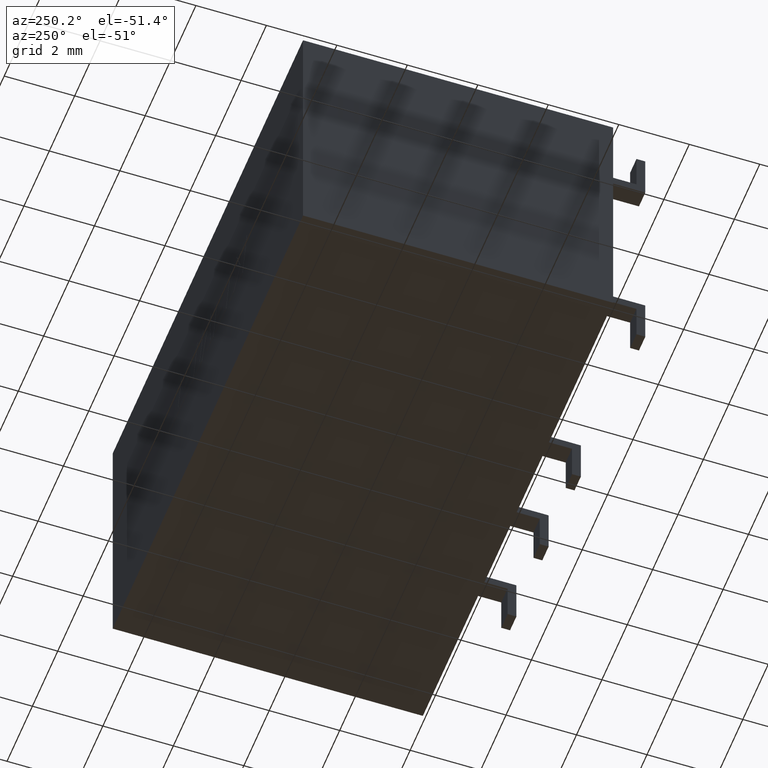
[diagram: clean part render]
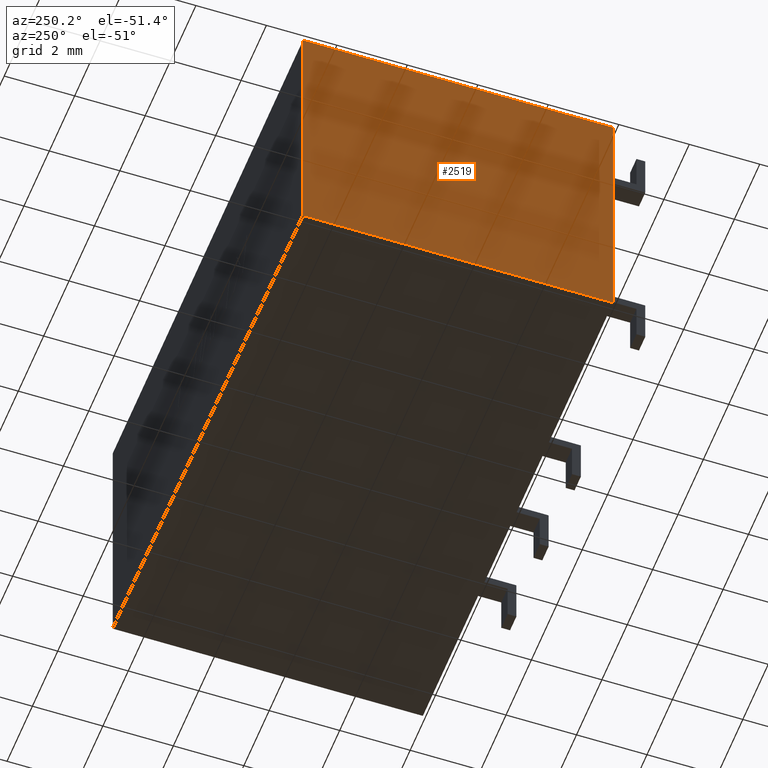
[diagram: same view with one face highlighted and labeled with its STEP entity id]
A machine part, auxiliary view. The second image highlights one B-rep face of the part: STEP entity #2519.
In plain terms, the highlighted planar face has unit normal (1, -0, 0).
Its self-contained STEP definition (entity closure, byte-faithful):
#149 = VECTOR ( 'NONE', #5208, 1000.000000000000000 ) ;
#269 = CARTESIAN_POINT ( 'NONE',  ( 0.0000000000000000000, 8.800000000000000700, 0.0000000000000000000 ) ) ;
#466 = AXIS2_PLACEMENT_3D ( 'NONE', #4395, #4815, #5234 ) ;
#535 = ORIENTED_EDGE ( 'NONE', *, *, #894, .F. ) ;
#894 = EDGE_CURVE ( 'NONE', #1311, #1740, #3308, .T. ) ;
#1012 = CARTESIAN_POINT ( 'NONE',  ( 0.0000000000000000000, 0.0000000000000000000, 0.0000000000000000000 ) ) ;
#1104 = CARTESIAN_POINT ( 'NONE',  ( 0.0000000000000000000, 0.0000000000000000000, 0.0000000000000000000 ) ) ;
#1245 = VERTEX_POINT ( 'NONE', #1104 ) ;
#1311 = VERTEX_POINT ( 'NONE', #5241 ) ;
#1572 = DIRECTION ( 'NONE',  ( -0.0000000000000000000, -0.0000000000000000000, 1.000000000000000000 ) ) ;
#1740 = VERTEX_POINT ( 'NONE', #269 ) ;
#1768 = LINE ( 'NONE', #3161, #149 ) ;
#1845 = LINE ( 'NONE', #3961, #1987 ) ;
#1987 = VECTOR ( 'NONE', #2724, 1000.000000000000000 ) ;
#2079 = EDGE_LOOP ( 'NONE', ( #4981, #3850, #535, #4601 ) ) ;
#2129 = CARTESIAN_POINT ( 'NONE',  ( 0.0000000000000000000, 0.0000000000000000000, -7.500000000000000000 ) ) ;
#2495 = EDGE_CURVE ( 'NONE', #3375, #1245, #4386, .T. ) ;
#2519 = ADVANCED_FACE ( 'NONE', ( #4077 ), #3549, .F. ) ;
#2602 = EDGE_CURVE ( 'NONE', #1311, #3375, #1768, .T. ) ;
#2724 = DIRECTION ( 'NONE',  ( -0.0000000000000000000, -1.000000000000000000, -0.0000000000000000000 ) ) ;
#3143 = DIRECTION ( 'NONE',  ( -0.0000000000000000000, -0.0000000000000000000, 1.000000000000000000 ) ) ;
#3161 = CARTESIAN_POINT ( 'NONE',  ( 0.0000000000000000000, 8.800000000000000700, -7.500000000000000000 ) ) ;
#3296 = VECTOR ( 'NONE', #3143, 1000.000000000000000 ) ;
#3308 = LINE ( 'NONE', #3613, #4096 ) ;
#3375 = VERTEX_POINT ( 'NONE', #2129 ) ;
#3549 = PLANE ( 'NONE',  #466 ) ;
#3613 = CARTESIAN_POINT ( 'NONE',  ( 0.0000000000000000000, 8.800000000000000700, 0.0000000000000000000 ) ) ;
#3655 = EDGE_CURVE ( 'NONE', #1740, #1245, #1845, .T. ) ;
#3850 = ORIENTED_EDGE ( 'NONE', *, *, #3655, .F. ) ;
#3961 = CARTESIAN_POINT ( 'NONE',  ( 0.0000000000000000000, 8.800000000000000700, 0.0000000000000000000 ) ) ;
#4077 = FACE_OUTER_BOUND ( 'NONE', #2079, .T. ) ;
#4096 = VECTOR ( 'NONE', #1572, 1000.000000000000000 ) ;
#4386 = LINE ( 'NONE', #1012, #3296 ) ;
#4395 = CARTESIAN_POINT ( 'NONE',  ( 0.0000000000000000000, 8.800000000000000700, 0.0000000000000000000 ) ) ;
#4601 = ORIENTED_EDGE ( 'NONE', *, *, #2602, .T. ) ;
#4815 = DIRECTION ( 'NONE',  ( 1.000000000000000000, -0.0000000000000000000, 0.0000000000000000000 ) ) ;
#4981 = ORIENTED_EDGE ( 'NONE', *, *, #2495, .T. ) ;
#5208 = DIRECTION ( 'NONE',  ( -0.0000000000000000000, -1.000000000000000000, -0.0000000000000000000 ) ) ;
#5234 = DIRECTION ( 'NONE',  ( 0.0000000000000000000, 0.0000000000000000000, -1.000000000000000000 ) ) ;
#5241 = CARTESIAN_POINT ( 'NONE',  ( 0.0000000000000000000, 8.800000000000000700, -7.500000000000000000 ) ) ;